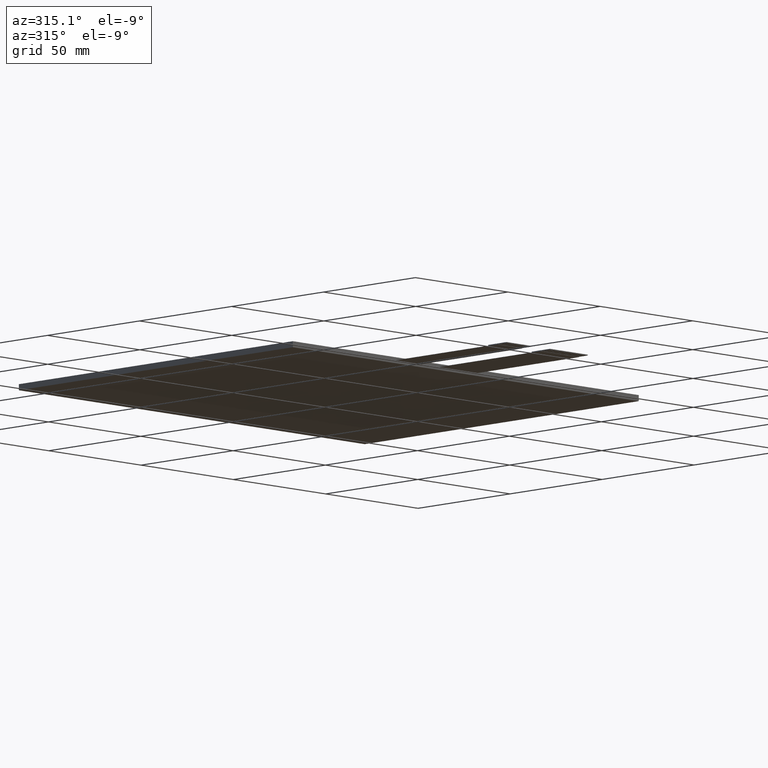
[diagram: clean part render]
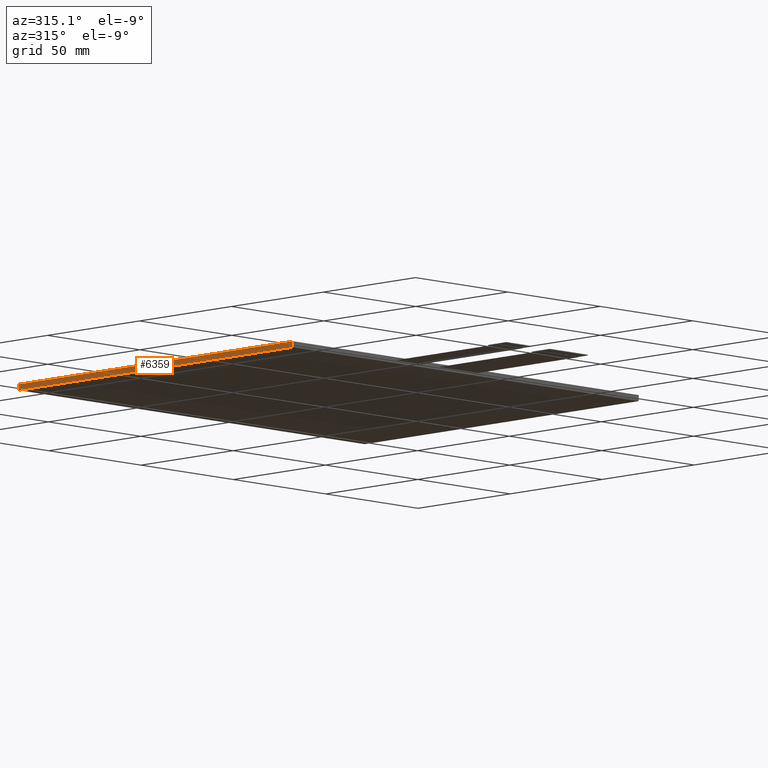
[diagram: same view with one face highlighted and labeled with its STEP entity id]
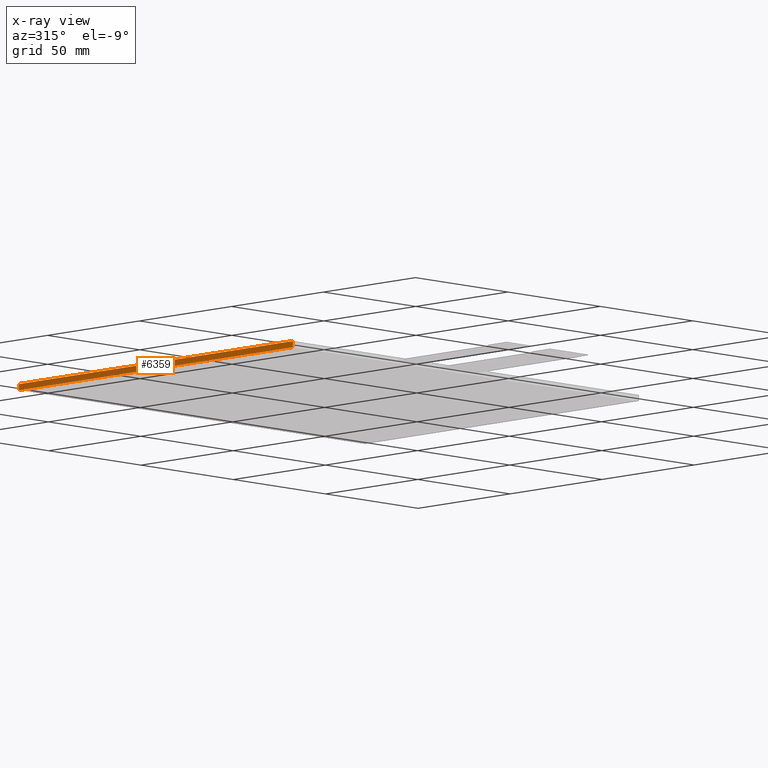
[diagram: x-ray of the same camera — body ghosted, the highlighted face saturated]
A machine part, auxiliary view. The second image highlights one B-rep face of the part: STEP entity #6359.
The next image is the same camera in x-ray: the body ghosted, the highlighted face saturated — about 0% of this face is hidden behind the body in this view.
In plain terms, the highlighted planar face has unit normal (-1, -0, 0).
Its self-contained STEP definition (entity closure, byte-faithful):
#421=PLANE('',#6689);
#723=FACE_OUTER_BOUND('',#1027,.T.);
#1027=EDGE_LOOP('',(#6027,#6028,#6029,#6030));
#1904=LINE('',#9958,#2784);
#1907=LINE('',#9964,#2787);
#1908=LINE('',#9966,#2788);
#1909=LINE('',#9967,#2789);
#2784=VECTOR('',#8174,10.);
#2787=VECTOR('',#8179,10.);
#2788=VECTOR('',#8180,10.);
#2789=VECTOR('',#8181,10.);
#3388=VERTEX_POINT('',#9955);
#3389=VERTEX_POINT('',#9957);
#3391=VERTEX_POINT('',#9963);
#3392=VERTEX_POINT('',#9965);
#4272=EDGE_CURVE('',#3388,#3389,#1904,.T.);
#4275=EDGE_CURVE('',#3388,#3391,#1907,.T.);
#4276=EDGE_CURVE('',#3392,#3391,#1908,.T.);
#4277=EDGE_CURVE('',#3389,#3392,#1909,.T.);
#6027=ORIENTED_EDGE('',*,*,#4272,.F.);
#6028=ORIENTED_EDGE('',*,*,#4275,.T.);
#6029=ORIENTED_EDGE('',*,*,#4276,.F.);
#6030=ORIENTED_EDGE('',*,*,#4277,.F.);
#6359=ADVANCED_FACE('',(#723),#421,.T.);
#6689=AXIS2_PLACEMENT_3D('',#9962,#8177,#8178);
#8174=DIRECTION('',(2.3859729206182E-16,-1.,0.));
#8177=DIRECTION('center_axis',(-1.,-2.3859729206182E-16,0.));
#8178=DIRECTION('ref_axis',(-2.3859729206182E-16,1.,0.));
#8179=DIRECTION('',(0.,0.,-1.));
#8180=DIRECTION('',(-2.3859729206182E-16,1.,0.));
#8181=DIRECTION('',(0.,0.,-1.));
#9955=CARTESIAN_POINT('',(-94.05,71.9,0.));
#9957=CARTESIAN_POINT('',(-94.05,-77.,0.));
#9958=CARTESIAN_POINT('',(-94.05,71.9,0.));
#9962=CARTESIAN_POINT('Origin',(-94.05,-77.,0.));
#9963=CARTESIAN_POINT('',(-94.05,71.9,-2.35));
#9964=CARTESIAN_POINT('',(-94.05,71.9,0.));
#9965=CARTESIAN_POINT('',(-94.05,-77.,-2.35));
#9966=CARTESIAN_POINT('',(-94.05,71.9,-2.35));
#9967=CARTESIAN_POINT('',(-94.05,-77.,0.));